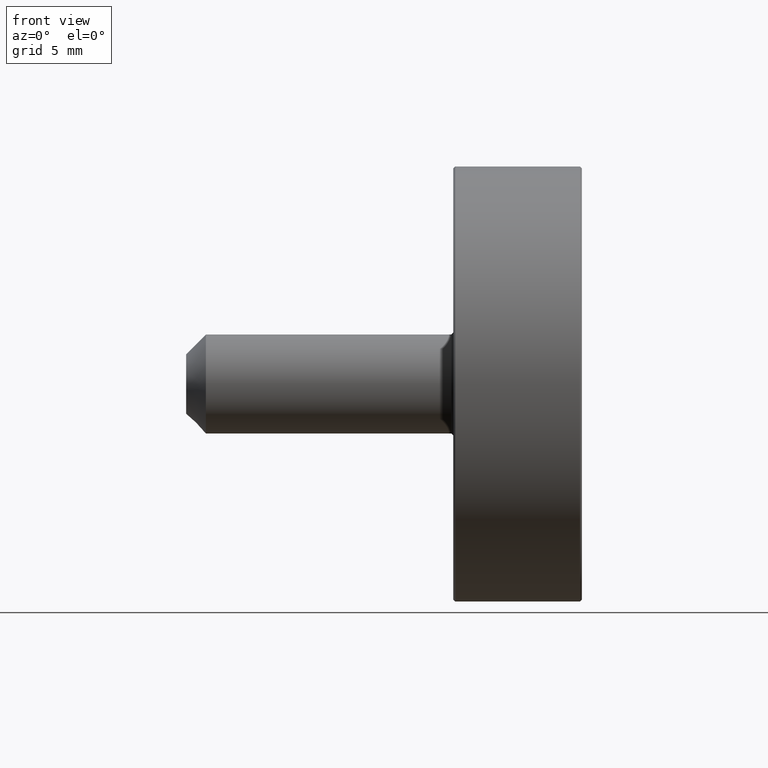
[diagram: clean part render]
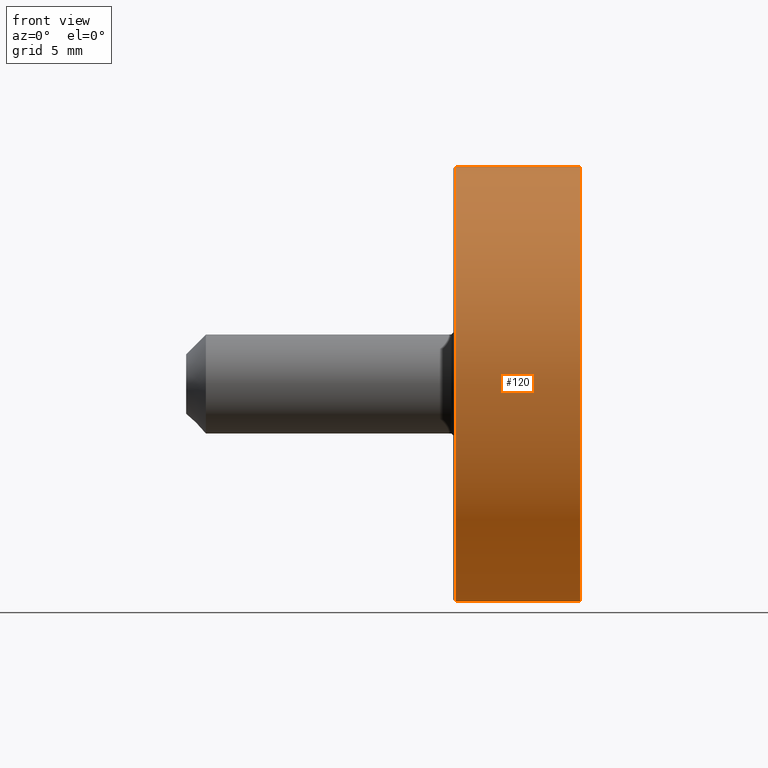
[diagram: same view with one face highlighted and labeled with its STEP entity id]
A machine part, front view. The second image highlights one B-rep face of the part: STEP entity #120.
In plain terms, the highlighted cylindrical surface (bore or boss wall) has radius 11 mm, axis along (1, 0, 0).
Its self-contained STEP definition (entity closure, byte-faithful):
#16=CYLINDRICAL_SURFACE('',#139,11.);
#26=FACE_BOUND('',#51,.T.);
#35=FACE_OUTER_BOUND('',#50,.T.);
#50=EDGE_LOOP('',(#100));
#51=EDGE_LOOP('',(#101));
#66=CIRCLE('',#137,11.);
#68=CIRCLE('',#140,11.);
#76=VERTEX_POINT('',#207);
#78=VERTEX_POINT('',#212);
#86=EDGE_CURVE('',#76,#76,#66,.T.);
#88=EDGE_CURVE('',#78,#78,#68,.T.);
#100=ORIENTED_EDGE('',*,*,#88,.F.);
#101=ORIENTED_EDGE('',*,*,#86,.F.);
#120=ADVANCED_FACE('',(#35,#26),#16,.T.);
#137=AXIS2_PLACEMENT_3D('',#208,#168,#169);
#139=AXIS2_PLACEMENT_3D('',#211,#172,#173);
#140=AXIS2_PLACEMENT_3D('',#213,#174,#175);
#168=DIRECTION('center_axis',(1.,0.,0.));
#169=DIRECTION('ref_axis',(0.,-1.,0.));
#172=DIRECTION('center_axis',(1.,0.,0.));
#173=DIRECTION('ref_axis',(0.,-1.,0.));
#174=DIRECTION('center_axis',(-1.,0.,0.));
#175=DIRECTION('ref_axis',(0.,-1.,0.));
#207=CARTESIAN_POINT('',(6.4,11.,1.34711147906209E-15));
#208=CARTESIAN_POINT('Origin',(6.4,0.,0.));
#211=CARTESIAN_POINT('Origin',(0.,0.,0.));
#212=CARTESIAN_POINT('',(0.1,11.,-1.34711147906209E-15));
#213=CARTESIAN_POINT('Origin',(0.1,0.,0.));